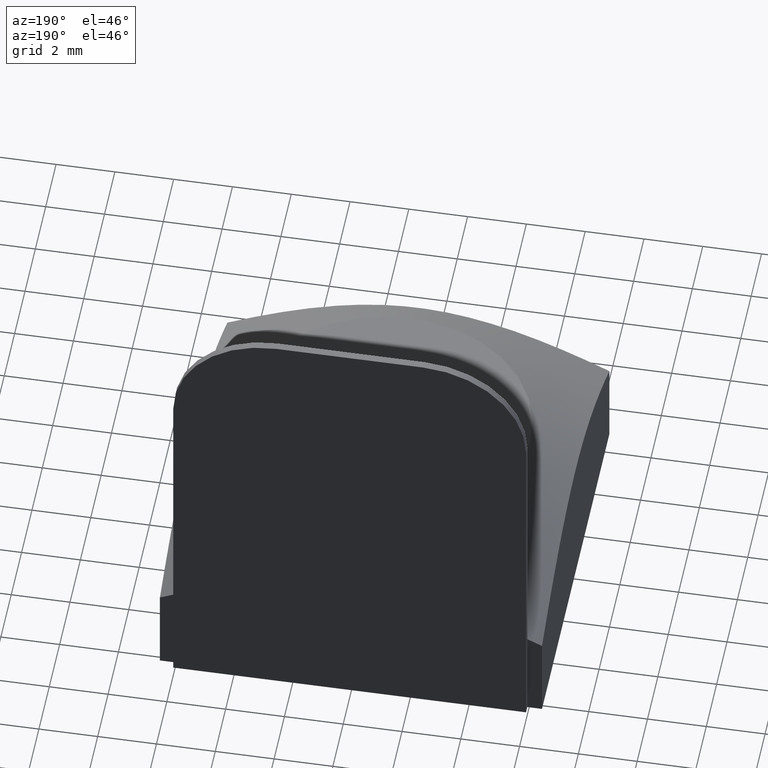
[diagram: clean part render]
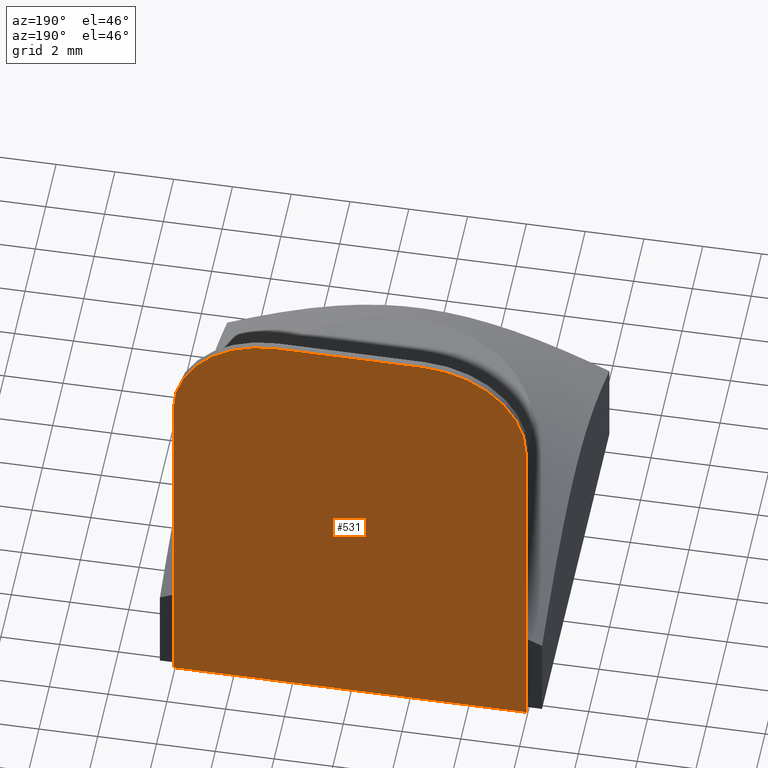
[diagram: same view with one face highlighted and labeled with its STEP entity id]
A machine part, auxiliary view. The second image highlights one B-rep face of the part: STEP entity #531.
In plain terms, the highlighted planar face has unit normal (0, 1, 0).
Its self-contained STEP definition (entity closure, byte-faithful):
#330=CARTESIAN_POINT('',(-2.499999999999773,6.749999999974079,16.0));
#331=VERTEX_POINT('',#330);
#338=CARTESIAN_POINT('',(-5.999999999999773,6.749999999974079,12.500000000000000));
#339=VERTEX_POINT('',#338);
#340=CARTESIAN_POINT('',(-2.499999999999773,6.749999999974079,12.500000000000000));
#341=DIRECTION('',(0.0,1.0,0.0));
#342=DIRECTION('',(0.0,0.0,1.0));
#343=AXIS2_PLACEMENT_3D('',#340,#341,#342);
#344=CIRCLE('',#343,3.500000000000000);
#345=EDGE_CURVE('',#339,#331,#344,.T.);
#369=CARTESIAN_POINT('',(2.500000000000227,6.749999999974079,16.0));
#370=VERTEX_POINT('',#369);
#377=CARTESIAN_POINT('',(-2.499999999999773,6.749999999974079,16.0));
#378=DIRECTION('',(1.0,0.0,0.0));
#379=VECTOR('',#378,5.0);
#380=LINE('',#377,#379);
#381=EDGE_CURVE('',#331,#370,#380,.T.);
#401=CARTESIAN_POINT('',(6.000000000000227,6.749999999974079,12.500000000000000));
#402=VERTEX_POINT('',#401);
#409=CARTESIAN_POINT('',(2.500000000000227,6.749999999974079,12.500000000000000));
#410=DIRECTION('',(0.0,1.0,0.0));
#411=DIRECTION('',(1.0,0.0,0.0));
#412=AXIS2_PLACEMENT_3D('',#409,#410,#411);
#413=CIRCLE('',#412,3.500000000000000);
#414=EDGE_CURVE('',#370,#402,#413,.T.);
#433=CARTESIAN_POINT('',(6.000000000000227,6.749999999974079,1.776357E-015));
#434=VERTEX_POINT('',#433);
#441=CARTESIAN_POINT('',(6.000000000000227,6.749999999974079,12.500000000000000));
#442=DIRECTION('',(0.0,0.0,-1.0));
#443=VECTOR('',#442,12.499999999999998);
#444=LINE('',#441,#443);
#445=EDGE_CURVE('',#402,#434,#444,.T.);
#464=CARTESIAN_POINT('',(-5.999999999999773,6.749999999974079,0.0));
#465=VERTEX_POINT('',#464);
#472=CARTESIAN_POINT('',(6.000000000000227,6.749999999974079,1.513940E-015));
#473=DIRECTION('',(-1.0,0.0,0.0));
#474=VECTOR('',#473,12.0);
#475=LINE('',#472,#474);
#476=EDGE_CURVE('',#434,#465,#475,.T.);
#494=CARTESIAN_POINT('',(-5.999999999999773,6.749999999974079,0.0));
#495=DIRECTION('',(0.0,0.0,1.0));
#496=VECTOR('',#495,12.500000000000000);
#497=LINE('',#494,#496);
#498=EDGE_CURVE('',#465,#339,#497,.T.);
#518=CARTESIAN_POINT('',(7.200042625428978,6.749999999974079,-1.600042625411713));
#519=DIRECTION('',(0.0,1.0,0.0));
#520=DIRECTION('',(-1.0,0.0,0.0));
#521=AXIS2_PLACEMENT_3D('',#518,#519,#520);
#522=PLANE('',#521);
#523=ORIENTED_EDGE('',*,*,#345,.T.);
#524=ORIENTED_EDGE('',*,*,#381,.T.);
#525=ORIENTED_EDGE('',*,*,#414,.T.);
#526=ORIENTED_EDGE('',*,*,#445,.T.);
#527=ORIENTED_EDGE('',*,*,#476,.T.);
#528=ORIENTED_EDGE('',*,*,#498,.T.);
#529=EDGE_LOOP('',(#523,#524,#525,#526,#527,#528));
#530=FACE_OUTER_BOUND('',#529,.T.);
#531=ADVANCED_FACE('',(#530),#522,.T.);